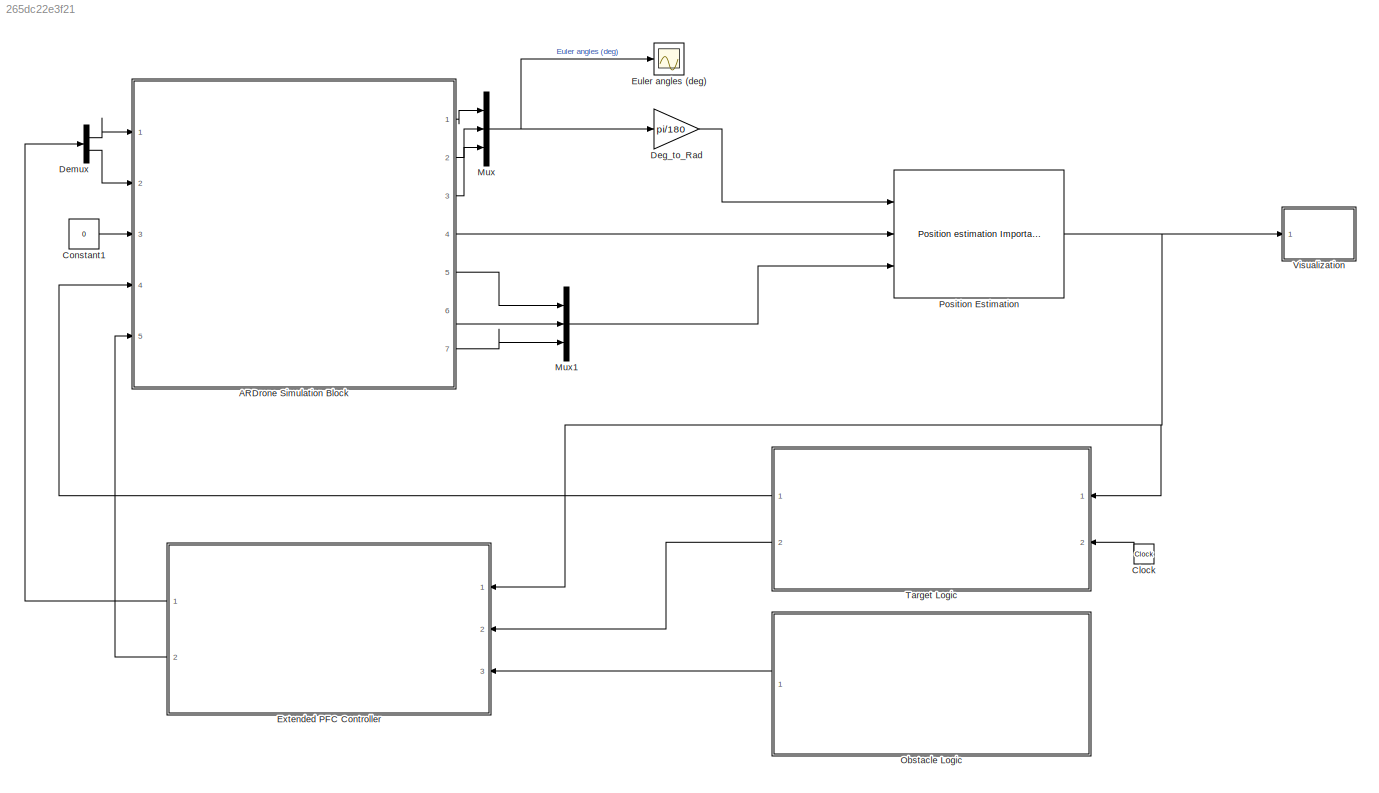
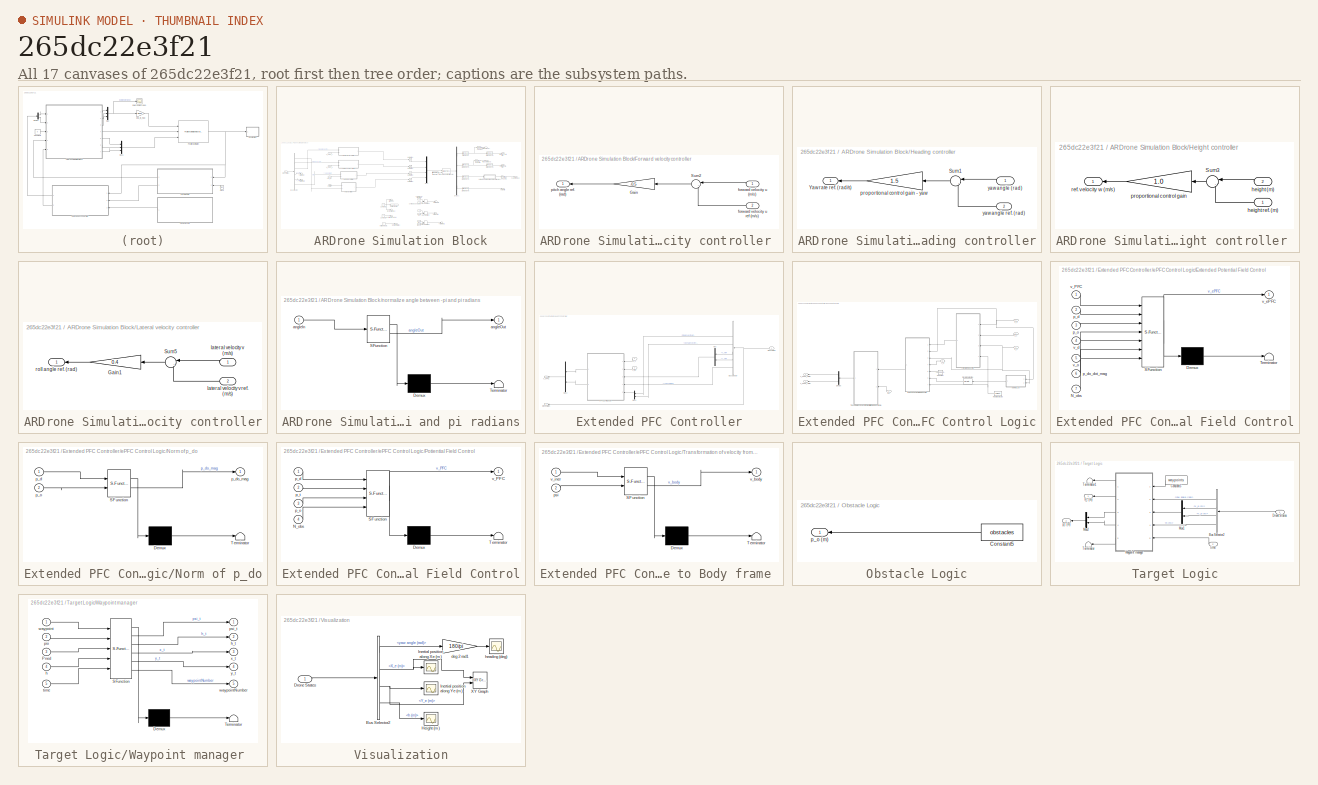
[diagram: thumbnail index - all 17 canvases of the model, root first then tree order]
MODEL slx_265dc22e3f21
KIND model
CONFIG AbsTol = auto
CONFIG EnableMultiTasking = off
CONFIG FixedStep = auto
CONFIG MaxStep = auto
CONFIG MinStep = auto
CONFIG RelTol = 1e-3
CONFIG SampleTimeConstraint = Unconstrained
CONFIG SolverName = VariableStepAuto
CONFIG StartTime = 0.0
CONFIG StopTime = inf
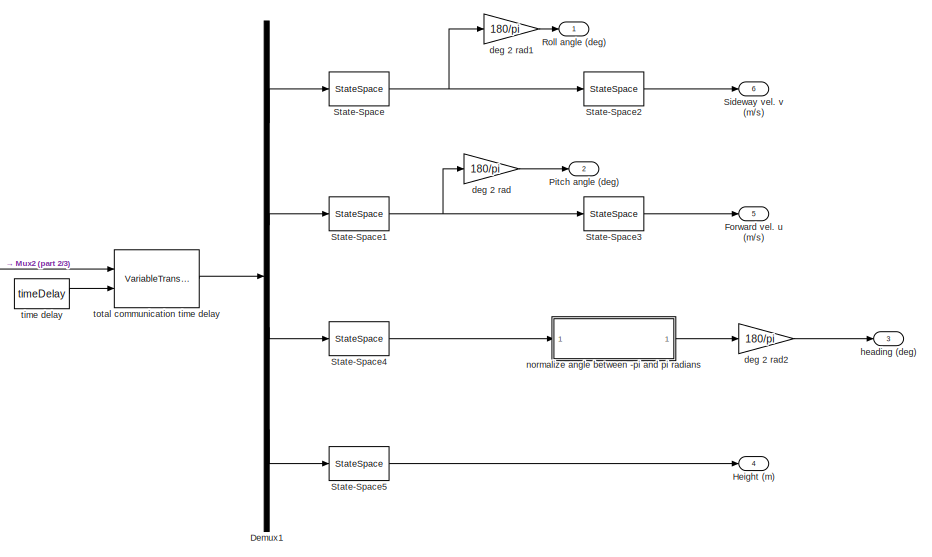
[diagram: ARDrone Simulation Block - part 1/3, middle right region]
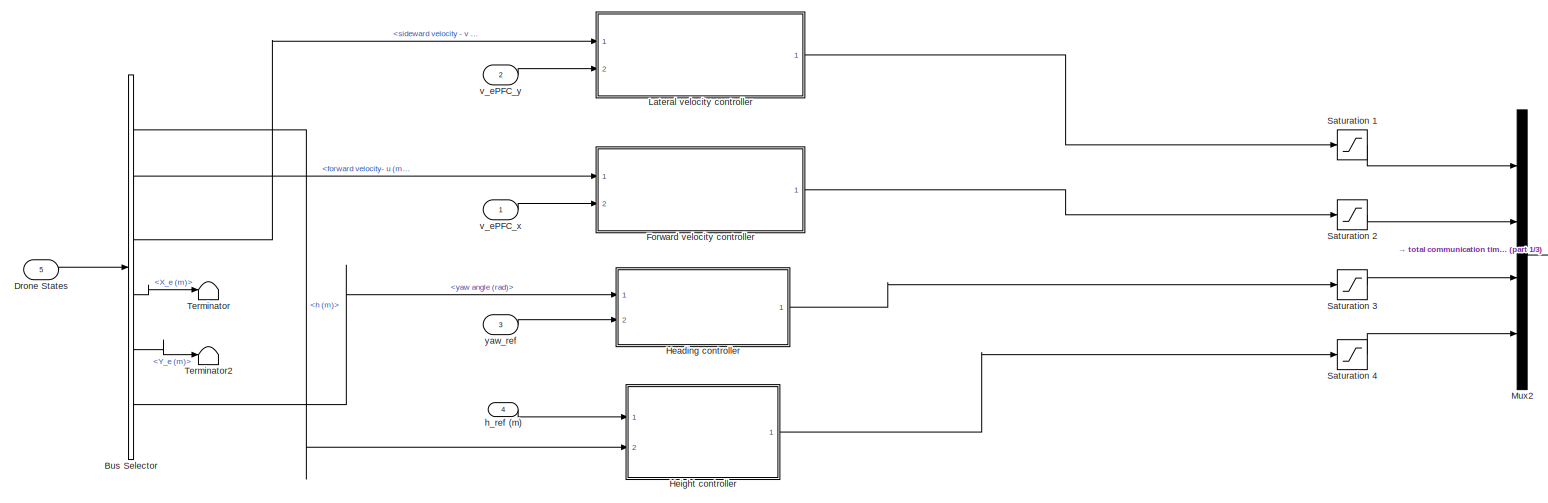
[diagram: ARDrone Simulation Block - part 2/3, top left region]
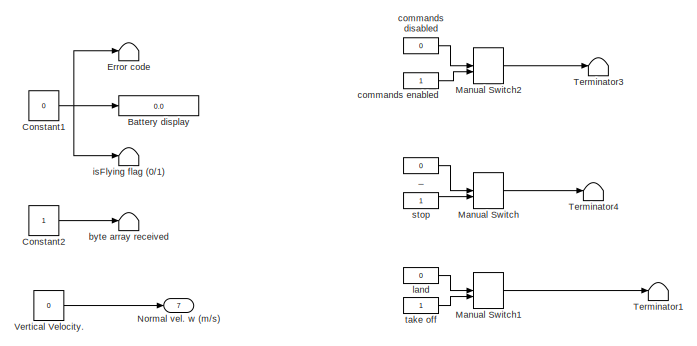
[diagram: ARDrone Simulation Block - part 3/3, bottom center region]
BLOCK [SubSystem] ARDrone Simulation Block
  AncestorBlock = ARBlocks/ARDrone Simulation Block
  Ports = [5, 7]
  RequestExecContextInheritance = off
BLOCK [Display] ARDrone Simulation Block/Battery display
  Decimation = 1
  Ports = [1]
BLOCK [BusSelector] ARDrone Simulation Block/Bus Selector
  NameLocation = top
  OutputSignals = h (m),forward velocity- u (m/s),sideward velocity - v (m/s),X_e (m),Y_e (m),yaw angle (rad)
  Ports = [1, 6]
BLOCK [Constant] ARDrone Simulation Block/Constant1
  Value = 0
BLOCK [Constant] ARDrone Simulation Block/Constant2
BLOCK [Demux] ARDrone Simulation Block/Demux1
  Ports = [1, 4]
BLOCK [Inport] ARDrone Simulation Block/Drone States
  Port = 5
BLOCK [Terminator] ARDrone Simulation Block/Error code
BLOCK [Outport] ARDrone Simulation Block/Forward vel. u (m//s)
  Port = 5
BLOCK [SubSystem] ARDrone Simulation Block/Forward velocity controller 
  NameLocation = top
  Ports = [2, 1]
  RequestExecContextInheritance = off
BLOCK [Gain] ARDrone Simulation Block/Forward velocity controller /Gain
  Gain = -0.5
  NameLocation = top
BLOCK [Sum] ARDrone Simulation Block/Forward velocity controller /Sum2
  Inputs = |-+
  NameLocation = top
  Ports = [2, 1]
BLOCK [Inport] ARDrone Simulation Block/Forward velocity controller /forward velocity u (m//s)
BLOCK [Inport] ARDrone Simulation Block/Forward velocity controller /forward velocity u ref (m//s)
  Port = 2
BLOCK [Outport] ARDrone Simulation Block/Forward velocity controller /pitch angle ref. (rad)
BLOCK [SubSystem] ARDrone Simulation Block/Heading controller
  NameLocation = top
  Ports = [2, 1]
  RequestExecContextInheritance = off
BLOCK [Sum] ARDrone Simulation Block/Heading controller/Sum1
  Inputs = |-+
  NameLocation = top
  Ports = [2, 1]
BLOCK [Outport] ARDrone Simulation Block/Heading controller/Yaw rate ref. (rad//s)
BLOCK [Gain] ARDrone Simulation Block/Heading controller/proportional control gain - yaw
  Gain = 1.5
  NameLocation = top
BLOCK [Inport] ARDrone Simulation Block/Heading controller/yaw angle (rad)
BLOCK [Inport] ARDrone Simulation Block/Heading controller/yaw angle ref. (rad)
  Port = 2
BLOCK [Outport] ARDrone Simulation Block/Height (m)
  Port = 4
BLOCK [SubSystem] ARDrone Simulation Block/Height controller 
  NameLocation = top
  Ports = [2, 1]
  RequestExecContextInheritance = off
BLOCK [Sum] ARDrone Simulation Block/Height controller /Sum3
  Inputs = |-+
  NameLocation = top
  Ports = [2, 1]
BLOCK [Inport] ARDrone Simulation Block/Height controller /height (m)
  Port = 2
BLOCK [Inport] ARDrone Simulation Block/Height controller /height ref. (m)
BLOCK [Gain] ARDrone Simulation Block/Height controller /proportional control gain
  Gain = 1.0
  NameLocation = top
BLOCK [Outport] ARDrone Simulation Block/Height controller /ref. velocity w (m//s)
BLOCK [SubSystem] ARDrone Simulation Block/Lateral velocity controller
  Ports = [2, 1]
  RequestExecContextInheritance = off
BLOCK [Gain] ARDrone Simulation Block/Lateral velocity controller/Gain1
  Gain = 0.4
  NameLocation = top
BLOCK [Sum] ARDrone Simulation Block/Lateral velocity controller/Sum5
  Inputs = |-+
  NameLocation = top
  Ports = [2, 1]
BLOCK [Inport] ARDrone Simulation Block/Lateral velocity controller/lateral velocity v (m//s)
BLOCK [Inport] ARDrone Simulation Block/Lateral velocity controller/lateral velocity v ref. (m//s)
  Port = 2
BLOCK [Outport] ARDrone Simulation Block/Lateral velocity controller/roll angle ref. (rad)
BLOCK [ManualSwitch] ARDrone Simulation Block/Manual Switch
BLOCK [ManualSwitch] ARDrone Simulation Block/Manual Switch1
  CurrentSetting = 0
BLOCK [ManualSwitch] ARDrone Simulation Block/Manual Switch2
  CurrentSetting = 0
  NameLocation = top
BLOCK [Mux] ARDrone Simulation Block/Mux2
  DisplayOption = bar
  Ports = [4, 1]
BLOCK [Outport] ARDrone Simulation Block/Normal vel. w (m//s)
  Port = 7
BLOCK [Outport] ARDrone Simulation Block/Pitch angle (deg)
  Port = 2
BLOCK [Outport] ARDrone Simulation Block/Roll angle (deg)
BLOCK [Saturate] ARDrone Simulation Block/Saturation 1
  LowerLimit = -1
  UpperLimit = 1
BLOCK [Saturate] ARDrone Simulation Block/Saturation 2
  LowerLimit = -1
  UpperLimit = 1
BLOCK [Saturate] ARDrone Simulation Block/Saturation 3
  LowerLimit = -1
  UpperLimit = 1
BLOCK [Saturate] ARDrone Simulation Block/Saturation 4
  LowerLimit = -1
  UpperLimit = 1
BLOCK [Outport] ARDrone Simulation Block/Sideway vel. v (m//s)
  Port = 6
BLOCK [StateSpace] ARDrone Simulation Block/State-Space
  A = ssRoll.a
  B = ssRoll.b
  C = ssRoll.c
  D = ssRoll.d
  InitialCondition = 0
  Ports = [1, 1]
BLOCK [StateSpace] ARDrone Simulation Block/State-Space1
  A = ssPitch.a
  B = ssPitch.b
  C = ssPitch.c
  D = ssPitch.d
  InitialCondition = 0
  Ports = [1, 1]
BLOCK [StateSpace] ARDrone Simulation Block/State-Space2
  A = ssRoll2V.a
  B = ssRoll2V.b
  C = ssRoll2V.c
  D = ssRoll2V.d
  InitialCondition = 0
  Ports = [1, 1]
BLOCK [StateSpace] ARDrone Simulation Block/State-Space3
  A = ssPitch2U.a
  B = ssPitch2U.b
  C = ssPitch2U.c
  D = ssPitch2U.d
  InitialCondition = 0
  Ports = [1, 1]
BLOCK [StateSpace] ARDrone Simulation Block/State-Space4
  A = ssYaw.a
  B = ssYaw.b
  C = ssYaw.c
  D = ssYaw.d
  InitialCondition = 0
  Ports = [1, 1]
BLOCK [StateSpace] ARDrone Simulation Block/State-Space5
  A = ssH.a
  B = ssH.b
  C = ssH.c
  D = ssH.d
  InitialCondition = 0
  Ports = [1, 1]
BLOCK [Terminator] ARDrone Simulation Block/Terminator
BLOCK [Terminator] ARDrone Simulation Block/Terminator1
BLOCK [Terminator] ARDrone Simulation Block/Terminator2
BLOCK [Terminator] ARDrone Simulation Block/Terminator3
BLOCK [Terminator] ARDrone Simulation Block/Terminator4
BLOCK [Constant] ARDrone Simulation Block/Vertical Velocity. 
  Value = 0
BLOCK [Constant] ARDrone Simulation Block/_
  Value = 0
BLOCK [Terminator] ARDrone Simulation Block/byte array received
BLOCK [Constant] ARDrone Simulation Block/commands disabled
  Value = 0
BLOCK [Constant] ARDrone Simulation Block/commands enabled
BLOCK [Gain] ARDrone Simulation Block/deg 2 rad
  Gain = 180/pi
BLOCK [Gain] ARDrone Simulation Block/deg 2 rad1
  Gain = 180/pi
BLOCK [Gain] ARDrone Simulation Block/deg 2 rad2
  Gain = 180/pi
BLOCK [Inport] ARDrone Simulation Block/h_ref (m)
  Port = 4
BLOCK [Outport] ARDrone Simulation Block/heading  (deg)
  Port = 3
BLOCK [Terminator] ARDrone Simulation Block/isFlying flag (0//1)
BLOCK [Constant] ARDrone Simulation Block/land
  Value = 0
BLOCK [SubSystem] ARDrone Simulation Block/normalize angle between -pi and pi radians
  ErrorFcn = Stateflow.Translate.translate
  NameLocation = top
  PermitHierarchicalResolution = ExplicitOnly
  Ports = [1, 1]
  RequestExecContextInheritance = off
  SFBlockType = MATLAB Function
  TreatAsAtomicUnit = on
BLOCK [Demux] ARDrone Simulation Block/normalize angle between -pi and pi radians/ Demux 
  Outputs = 1
  Ports = [1, 1]
BLOCK [S-Function] ARDrone Simulation Block/normalize angle between -pi and pi radians/ SFunction 
  EnableBusSupport = on
  FunctionName = sf_sfun
  PortCounts = [1 2]
  Ports = [1, 2]
  SFcnIsStateOwnerBlock = off
  SFunctionDeploymentMode = off
  Tag = Stateflow S-Function 5
BLOCK [Terminator] ARDrone Simulation Block/normalize angle between -pi and pi radians/ Terminator 
BLOCK [Inport] ARDrone Simulation Block/normalize angle between -pi and pi radians/angleIn
BLOCK [Outport] ARDrone Simulation Block/normalize angle between -pi and pi radians/angleOut
BLOCK [Constant] ARDrone Simulation Block/stop
BLOCK [Constant] ARDrone Simulation Block/take off
BLOCK [Constant] ARDrone Simulation Block/time delay
  Value = timeDelay
BLOCK [VariableTransportDelay] ARDrone Simulation Block/total communication time delay
  InitialOutput = [0 0 0 0]
  MaximumDelay = 10
  MaximumPoints = 4096
  Ports = [2, 1]
BLOCK [Inport] ARDrone Simulation Block/v_ePFC_x
BLOCK [Inport] ARDrone Simulation Block/v_ePFC_y
  Port = 2
BLOCK [Inport] ARDrone Simulation Block/yaw_ref
  Port = 3
BLOCK [Clock] Clock
BLOCK [Constant] Constant1
  Value = 0
BLOCK [Gain] Deg_to_Rad
  Gain = pi/180
BLOCK [Demux] Demux
  Outputs = 2
  Ports = [1, 2]
BLOCK [Scope] Euler angles (deg)
  Floating = off
  NumInputPorts = 1
  Ports = [1]
  ScopeSpecificationString = Simulink.scopes.TimeScopeBlockCfg('CurrentConfiguration', extmgr.ConfigurationSet(extmgr.Configuration('Core','General UI',true),extmgr.Configuration('Core','Source UI',true),extmgr.Configuration('Sources','WiredSimulink',true,'DataLoggingSaveFormat','StructureWithTime','DataLoggingMaxPoints','500000','DataLoggingLimitDataPoints',true,'DataLoggingDecimation','1','DataLoggingDecimateData',true,'Dat...<+1800ch>
BLOCK [SubSystem] Extended PFC Controller
  AncestorBlock = ARBlocks/Baseline Controller
  Ports = [3, 2]
  RequestExecContextInheritance = off
BLOCK [BusSelector] Extended PFC Controller/Bus Selector
  NameLocation = top
  OutputSignals = h (m),forward velocity- u (m/s),sideward velocity - v (m/s),X_e (m),Y_e (m),yaw angle (rad)
  Ports = [1, 6]
BLOCK [Outport] Extended PFC Controller/Drone States
  Port = 2
BLOCK [Inport] Extended PFC Controller/Drone States 
BLOCK [Mux] Extended PFC Controller/Mux
  DisplayOption = bar
  Inputs = 2
  Ports = [2, 1]
BLOCK [Mux] Extended PFC Controller/Mux1
  DisplayOption = bar
  Inputs = 2
  Ports = [2, 1]
BLOCK [Mux] Extended PFC Controller/Mux2
  DisplayOption = bar
  Inputs = 2
  Ports = [2, 1]
BLOCK [SubSystem] Extended PFC Controller/ePFC Control Logic
  NameLocation = top
  Ports = [5, 2]
  RequestExecContextInheritance = off
BLOCK [Constant] Extended PFC Controller/ePFC Control Logic/Constant
  Value = zeros(2,nObst)
BLOCK [Demux] Extended PFC Controller/ePFC Control Logic/Demux
  NameLocation = top
  Outputs = 2
  Ports = [1, 2]
BLOCK [Reference] Extended PFC Controller/ePFC Control Logic/Discrete Derivative  REF=simulink/Discrete/Discrete Derivative
  Ports = [1, 1]
  SourceBlock = simulink/Discrete/Discrete Derivative
  SourceProductBaseCode = SL
  SourceType = Discrete Derivative
BLOCK [SubSystem] Extended PFC Controller/ePFC Control Logic/Extended Potential Field Control
  ErrorFcn = Stateflow.Translate.translate
  NameLocation = top
  PermitHierarchicalResolution = ExplicitOnly
  Ports = [7, 1]
  RequestExecContextInheritance = off
  SFBlockType = MATLAB Function
  TreatAsAtomicUnit = on
BLOCK [Demux] Extended PFC Controller/ePFC Control Logic/Extended Potential Field Control/ Demux 
  Outputs = 1
  Ports = [1, 1]
BLOCK [S-Function] Extended PFC Controller/ePFC Control Logic/Extended Potential Field Control/ SFunction 
  EnableBusSupport = on
  FunctionName = sf_sfun
  PortCounts = [7 2]
  Ports = [7, 2]
  SFcnIsStateOwnerBlock = off
  SFunctionDeploymentMode = off
  Tag = Stateflow S-Function 3
BLOCK [Terminator] Extended PFC Controller/ePFC Control Logic/Extended Potential Field Control/ Terminator 
BLOCK [Inport] Extended PFC Controller/ePFC Control Logic/Extended Potential Field Control/N_obs
  Port = 7
BLOCK [Inport] Extended PFC Controller/ePFC Control Logic/Extended Potential Field Control/p_d
  Port = 2
BLOCK [Inport] Extended PFC Controller/ePFC Control Logic/Extended Potential Field Control/p_do_dot_mag
  Port = 6
BLOCK [Inport] Extended PFC Controller/ePFC Control Logic/Extended Potential Field Control/p_o
  Port = 3
BLOCK [Inport] Extended PFC Controller/ePFC Control Logic/Extended Potential Field Control/v_PFC
BLOCK [Inport] Extended PFC Controller/ePFC Control Logic/Extended Potential Field Control/v_d
  Port = 4
BLOCK [Outport] Extended PFC Controller/ePFC Control Logic/Extended Potential Field Control/v_ePFC
BLOCK [Inport] Extended PFC Controller/ePFC Control Logic/Extended Potential Field Control/v_o
  Port = 5
BLOCK [Constant] Extended PFC Controller/ePFC Control Logic/No. of Obstacles
  LockScale = on
  Value = nObst
BLOCK [SubSystem] Extended PFC Controller/ePFC Control Logic/Norm of p_do
  ErrorFcn = Stateflow.Translate.translate
  PermitHierarchicalResolution = ExplicitOnly
  Ports = [2, 1]
  RequestExecContextInheritance = off
  SFBlockType = MATLAB Function
  TreatAsAtomicUnit = on
BLOCK [Demux] Extended PFC Controller/ePFC Control Logic/Norm of p_do/ Demux 
  Outputs = 1
  Ports = [1, 1]
BLOCK [S-Function] Extended PFC Controller/ePFC Control Logic/Norm of p_do/ SFunction 
  EnableBusSupport = on
  FunctionName = sf_sfun
  Parameters = nObst
  PortCounts = [2 2]
  Ports = [2, 2]
  SFcnIsStateOwnerBlock = off
  SFunctionDeploymentMode = off
  Tag = Stateflow S-Function 4
BLOCK [Terminator] Extended PFC Controller/ePFC Control Logic/Norm of p_do/ Terminator 
BLOCK [Inport] Extended PFC Controller/ePFC Control Logic/Norm of p_do/p_d
BLOCK [Outport] Extended PFC Controller/ePFC Control Logic/Norm of p_do/p_do_mag
BLOCK [Inport] Extended PFC Controller/ePFC Control Logic/Norm of p_do/p_o
  Port = 2
BLOCK [SubSystem] Extended PFC Controller/ePFC Control Logic/Potiential Field Control
  ErrorFcn = Stateflow.Translate.translate
  NameLocation = top
  PermitHierarchicalResolution = ExplicitOnly
  Ports = [4, 1]
  RequestExecContextInheritance = off
  SFBlockType = MATLAB Function
  TreatAsAtomicUnit = on
BLOCK [Demux] Extended PFC Controller/ePFC Control Logic/Potiential Field Control/ Demux 
  Outputs = 1
  Ports = [1, 1]
BLOCK [S-Function] Extended PFC Controller/ePFC Control Logic/Potiential Field Control/ SFunction 
  EnableBusSupport = on
  FunctionName = sf_sfun
  PortCounts = [4 2]
  Ports = [4, 2]
  SFcnIsStateOwnerBlock = off
  SFunctionDeploymentMode = off
  Tag = Stateflow S-Function 1
BLOCK [Terminator] Extended PFC Controller/ePFC Control Logic/Potiential Field Control/ Terminator 
BLOCK [Inport] Extended PFC Controller/ePFC Control Logic/Potiential Field Control/N_obs
  Port = 4
BLOCK [Inport] Extended PFC Controller/ePFC Control Logic/Potiential Field Control/p_d
BLOCK [Inport] Extended PFC Controller/ePFC Control Logic/Potiential Field Control/p_o
  Port = 3
BLOCK [Inport] Extended PFC Controller/ePFC Control Logic/Potiential Field Control/p_t
  Port = 2
BLOCK [Outport] Extended PFC Controller/ePFC Control Logic/Potiential Field Control/v_PFC
BLOCK [SubSystem] Extended PFC Controller/ePFC Control Logic/Transformation of velocity from Inertial frame to Body frame 
  ErrorFcn = Stateflow.Translate.translate
  NameLocation = top
  PermitHierarchicalResolution = ExplicitOnly
  Ports = [2, 1]
  RequestExecContextInheritance = off
  SFBlockType = MATLAB Function
  TreatAsAtomicUnit = on
BLOCK [Demux] Extended PFC Controller/ePFC Control Logic/Transformation of velocity from Inertial frame to Body frame / Demux 
  Outputs = 1
  Ports = [1, 1]
BLOCK [S-Function] Extended PFC Controller/ePFC Control Logic/Transformation of velocity from Inertial frame to Body frame / SFunction 
  EnableBusSupport = on
  FunctionName = sf_sfun
  PortCounts = [2 2]
  Ports = [2, 2]
  SFcnIsStateOwnerBlock = off
  SFunctionDeploymentMode = off
  Tag = Stateflow S-Function 7
BLOCK [Terminator] Extended PFC Controller/ePFC Control Logic/Transformation of velocity from Inertial frame to Body frame / Terminator 
BLOCK [Inport] Extended PFC Controller/ePFC Control Logic/Transformation of velocity from Inertial frame to Body frame /psi
  Port = 2
BLOCK [Outport] Extended PFC Controller/ePFC Control Logic/Transformation of velocity from Inertial frame to Body frame /v_body
BLOCK [Inport] Extended PFC Controller/ePFC Control Logic/Transformation of velocity from Inertial frame to Body frame /v_iner
BLOCK [Outport] Extended PFC Controller/ePFC Control Logic/V_ePFC_x (m//s)
BLOCK [Outport] Extended PFC Controller/ePFC Control Logic/V_ePFC_y (m//s)
  Port = 2
BLOCK [Inport] Extended PFC Controller/ePFC Control Logic/p_d
  Port = 3
BLOCK [Inport] Extended PFC Controller/ePFC Control Logic/p_o
BLOCK [Inport] Extended PFC Controller/ePFC Control Logic/p_t
  Port = 2
BLOCK [Inport] Extended PFC Controller/ePFC Control Logic/psi
  Port = 4
BLOCK [Inport] Extended PFC Controller/ePFC Control Logic/v_d
  Port = 5
BLOCK [Inport] Extended PFC Controller/p_o
  Port = 3
BLOCK [Inport] Extended PFC Controller/p_t (m)
  Port = 2
BLOCK [Outport] Extended PFC Controller/v_ePFC
BLOCK [Mux] Mux
  DisplayOption = bar
  Inputs = 3
  Ports = [3, 1]
BLOCK [Mux] Mux1
  DisplayOption = bar
  Inputs = 3
  Ports = [3, 1]
BLOCK [SubSystem] Obstacle Logic
  AncestorBlock = ARBlocks/Guidance logic
  Ports = [0, 1]
  RequestExecContextInheritance = off
BLOCK [Constant] Obstacle Logic/Constant5
  NameLocation = top
  Value = obstacles
  VectorParams1D = off
BLOCK [Outport] Obstacle Logic/p_o (m)
BLOCK [Reference] Position Estimation   REF=ARBlocks/Position estimation
Important:This block provides an 
inaccurate extimation of position 
based on  velocity information. 
  Ports = [3, 1]
  SourceBlock = ARBlocks/Position estimation\nImportant:This block provides an \ninaccurate extimation of position \nbased on  velocity information.
  SourceType = SubSystem
BLOCK [SubSystem] Target Logic
  AncestorBlock = ARBlocks/Guidance logic
  Ports = [2, 2]
  RequestExecContextInheritance = off
BLOCK [BusSelector] Target Logic/Bus Selector2
  OutputSignals = yaw angle (rad),X_e (m),Y_e (m),h (m)
  Ports = [1, 4]
BLOCK [Constant] Target Logic/Constant5
  NameLocation = top
  Value = waypoints
  VectorParams1D = off
BLOCK [Inport] Target Logic/Drone States
BLOCK [Mux] Target Logic/Mux1
  DisplayOption = bar
  Inputs = 2
  NameLocation = top
  Ports = [2, 1]
BLOCK [Mux] Target Logic/Mux2
  DisplayOption = bar
  Inputs = 2
  NameLocation = top
  Ports = [2, 1]
BLOCK [Terminator] Target Logic/Terminator
  NameLocation = top
BLOCK [Terminator] Target Logic/Terminator1
  NameLocation = top
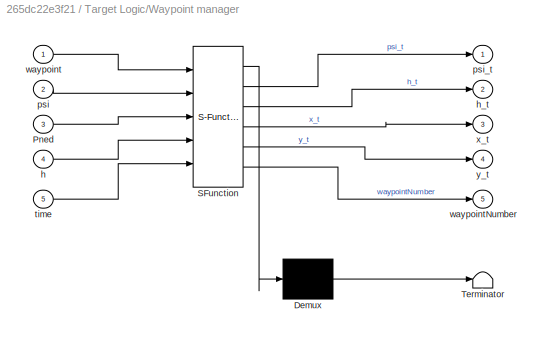
BLOCK [SubSystem] Target Logic/Waypoint manager 
  ErrorFcn = Stateflow.Translate.translate
  NameLocation = top
  PermitHierarchicalResolution = ExplicitOnly
  Ports = [5, 5]
  RequestExecContextInheritance = off
  SFBlockType = MATLAB Function
  TreatAsAtomicUnit = on
BLOCK [Demux] Target Logic/Waypoint manager / Demux 
  Outputs = 1
  Ports = [1, 1]
BLOCK [S-Function] Target Logic/Waypoint manager / SFunction 
  EnableBusSupport = on
  FunctionName = sf_sfun
  PortCounts = [5 6]
  Ports = [5, 6]
  SFcnIsStateOwnerBlock = off
  SFunctionDeploymentMode = off
  Tag = Stateflow S-Function 9
BLOCK [Terminator] Target Logic/Waypoint manager / Terminator 
BLOCK [Inport] Target Logic/Waypoint manager /Pned
  Port = 3
BLOCK [Inport] Target Logic/Waypoint manager /h
  Port = 4
BLOCK [Outport] Target Logic/Waypoint manager /h_t
  Port = 2
BLOCK [Inport] Target Logic/Waypoint manager /psi
  Port = 2
BLOCK [Outport] Target Logic/Waypoint manager /psi_t
BLOCK [Inport] Target Logic/Waypoint manager /time
  Port = 5
BLOCK [Inport] Target Logic/Waypoint manager /waypoint
BLOCK [Outport] Target Logic/Waypoint manager /waypointNumber
  Port = 5
BLOCK [Outport] Target Logic/Waypoint manager /x_t
  Port = 3
BLOCK [Outport] Target Logic/Waypoint manager /y_t
  Port = 4
BLOCK [Outport] Target Logic/h_t (m)
BLOCK [Outport] Target Logic/p_t (m)
  Port = 2
BLOCK [Inport] Target Logic/time
  Port = 2
BLOCK [SubSystem] Visualization
  Ports = [1]
  RequestExecContextInheritance = off
BLOCK [BusSelector] Visualization/Bus Selector2
  NameLocation = top
  OutputSignals = yaw angle (rad),X_e (m),Y_e (m),h (m)
  Ports = [1, 4]
BLOCK [Inport] Visualization/Drone States
BLOCK [Scope] Visualization/Height (m)
  Floating = off
  NumInputPorts = 1
  Ports = [1]
  ScopeSpecificationString = Simulink.scopes.TimeScopeBlockCfg('CurrentConfiguration', extmgr.ConfigurationSet(extmgr.Configuration('Core','General UI',true),extmgr.Configuration('Core','Source UI',true),extmgr.Configuration('Sources','WiredSimulink',true,'DataLoggingVariableName','ScopeData5','DataLoggingSaveFormat','StructureWithTime','DataLoggingMaxPoints','500000','DataLoggingLimitDataPoints',true,'DataLoggingDecimation',...<+1736ch>
BLOCK [Scope] Visualization/Inertial position along Xe (m)
  Floating = off
  NumInputPorts = 1
  Ports = [1]
  ScopeSpecificationString = Simulink.scopes.TimeScopeBlockCfg('CurrentConfiguration', extmgr.ConfigurationSet(extmgr.Configuration('Core','General UI',true),extmgr.Configuration('Core','Source UI',true),extmgr.Configuration('Sources','WiredSimulink',true,'DataLoggingVariableName','ScopeData3','DataLoggingSaveFormat','StructureWithTime','DataLoggingMaxPoints','500000','DataLoggingLimitDataPoints',true,'DataLoggingDecimation',...<+1770ch>
BLOCK [Scope] Visualization/Inertial position along Ye (m)
  Floating = off
  NumInputPorts = 1
  Ports = [1]
  ScopeSpecificationString = Simulink.scopes.TimeScopeBlockCfg('CurrentConfiguration', extmgr.ConfigurationSet(extmgr.Configuration('Core','General UI',true),extmgr.Configuration('Core','Source UI',true),extmgr.Configuration('Sources','WiredSimulink',true,'DataLoggingVariableName','ScopeData4','DataLoggingSaveFormat','StructureWithTime','DataLoggingMaxPoints','500000','DataLoggingLimitDataPoints',true,'DataLoggingDecimation',...<+1770ch>
BLOCK [Reference] Visualization/XY Graph  REF=simulink/Sinks/XY Graph
  Ports = [2]
  SourceBlock = simulink/Sinks/XY Graph
  SourceProductBaseCode = SL
  SourceType = XY scope.
BLOCK [Gain] Visualization/deg 2 rad1
  Gain = 180/pi
BLOCK [Scope] Visualization/heading (deg)
  Floating = off
  NumInputPorts = 1
  Ports = [1]
  ScopeSpecificationString = Simulink.scopes.TimeScopeBlockCfg('CurrentConfiguration', extmgr.ConfigurationSet(extmgr.Configuration('Core','General UI',true),extmgr.Configuration('Core','Source UI',true),extmgr.Configuration('Sources','WiredSimulink',true,'DataLoggingVariableName','ScopeData2','DataLoggingSaveFormat','StructureWithTime','DataLoggingMaxPoints','500000','DataLoggingLimitDataPoints',true,'DataLoggingDecimation',...<+1736ch>
LINE ARDrone Simulation Block:1 -> Mux:1
LINE ARDrone Simulation Block:2 -> Mux:2
LINE ARDrone Simulation Block:3 -> Mux:3
LINE ARDrone Simulation Block:4 -> Position Estimation :2
LINE ARDrone Simulation Block:5 -> Mux1:1
LINE ARDrone Simulation Block:6 -> Mux1:2
LINE ARDrone Simulation Block:7 -> Mux1:3
LINE Clock:1 -> Target Logic:2
LINE Constant1:1 -> ARDrone Simulation Block:3
LINE Deg_to_Rad:1 -> Position Estimation :1
LINE Demux:1 -> ARDrone Simulation Block:1
LINE Demux:2 -> ARDrone Simulation Block:2
LINE Extended PFC Controller:1 -> Demux:1
LINE Extended PFC Controller:2 -> ARDrone Simulation Block:5
LINE Mux1:1 -> Position Estimation :3
NET Mux:1 -> Deg_to_Rad:1, Euler angles (deg):1
LINE Obstacle Logic:1 -> Extended PFC Controller:3
NET Position Estimation :1 -> Extended PFC Controller:1, Target Logic:1, Visualization:1
LINE Target Logic:1 -> ARDrone Simulation Block:4
LINE Target Logic:2 -> Extended PFC Controller:2
LINE Visualization/Bus Selector2:1 -> Visualization/deg 2 rad1:1
NET Visualization/Bus Selector2:2 -> Visualization/Inertial position along Xe (m):1, Visualization/XY Graph:1
NET Visualization/Bus Selector2:3 -> Visualization/Inertial position along Ye (m):1, Visualization/XY Graph:2
LINE Visualization/Bus Selector2:4 -> Visualization/Height (m):1
LINE Visualization/Drone States:1 -> Visualization/Bus Selector2:1
LINE Visualization/deg 2 rad1:1 -> Visualization/heading (deg):1
note: NET lines group one-source signal fan-out (src -> all destinations, sorted); 1:1 wires keep LINE
CHART Extended PFC Controller/ePFC Control Logic/Potiential Field Control states=1 transitions=1
  STATE_LABEL 'eML_blk_kernel()'
  STATE_LABEL 'SCRIPT:\nfunction v_PFC  = fcn(p_d , p_t, p_o, N_obs)\n    %% Calculating PFC velocity\n    % Inputs: drone position (X,Y), target positions (X,Y), \n    %         obstacle positions (X,Y), Number of Obstacles\n    % Output: Computed PFC velocity in Inertial frame(m/s)\n    \n    p_avoid = 0.8; % Obstacle avoidance range (m)\n       \n    % Positive Scalar constants\n    lamda_1 = 0.4; % Tuned values: 0.3 &...<+495ch>'
CHART Extended PFC Controller/ePFC Control Logic/Extended Potential Field Control states=1 transitions=1
  STATE_LABEL 'eML_blk_kernel()'
  STATE_LABEL 'SCRIPT:\nfunction v_ePFC  = fcn(v_PFC, p_d , p_o, v_d, v_o, p_do_dot_mag, N_obs)    \n    %% Calculating ePFC velocity\n    % Inputs: PFC velocity (m/s), drone position (X,Y),  \n    %         obstacle positions (X,Y), drone velocities (X,Y)\n    %         obstacle velocities (X,Y), |p_do|_dot, No. of Obstacles\n    % Output: Computed extended PFC velocity in Inertial frame (m/s)\n    \n    % Positive sca...<+868ch>'
CHART Extended PFC Controller/ePFC Control Logic/Norm of p_do states=1 transitions=1
  STATE_LABEL 'eML_blk_kernel()'
  STATE_LABEL 'SCRIPT:\nfunction p_do_mag = fcn(p_d, p_o, nObst)\n    \n    p = zeros(1, nObst);\n    \n    if (nObst ~= 0)\n        for i = 1:nObst\n           p(i) = norm(p_d - p_o(:,i));\n        end\n    end\n    \n    p_do_mag = p;\n    \nend\n'
CHART ARDrone Simulation Block/normalize angle 
between -pi and pi radians states=1 transitions=1
  STATE_LABEL 'eML_blk_kernel()'
  STATE_LABEL 'SCRIPT:\nfunction angleOut = fcn(angleIn)\n%#codegen\n\nangleOut = mod(angleIn, 2*pi) ;\nif angleOut > pi\n    angleOut = -2*pi + angleOut ; \nend\n'
CHART Extended PFC Controller/ePFC Control Logic/Transformation of velocity 
from Inertial frame to Body frame  states=1 transitions=1
  STATE_LABEL 'eML_blk_kernel()'
  STATE_LABEL 'SCRIPT:\nfunction v_body  = fcn(v_iner , psi)\n    \n    R = [cos(psi) sin(psi) ; -sin(psi) cos(psi)] ; \n\n    v_body = R * v_iner(1:2,1); \n\nend\n\n\n'
CHART Target Logic/Waypoint manager
 states=1 transitions=1
  STATE_LABEL 'eML_blk_kernel()'
  STATE_LABEL 'SCRIPT:\nfunction [psi_t, h_t,  x_t, y_t, waypointNumber]       = fcn(waypoint, psi, Pned, h, time )\n\n    % Waypoint matrix contains final position, orientation, and waiting time.\n\n    % Number of waypoints\n    nPoints = size(waypoint, 2) ;\n\n    % Persitent variable used to keep trak of next waypoint\n    persistent wpointer;\n\n    % Time zero for each waypoint. This is used to wait at a desired posi...<+1095ch>'
CHART  states=0 transitions=0
CHART  states=0 transitions=0
CHART  states=0 transitions=0
CHART  states=0 transitions=0
CHART  states=0 transitions=0
CHART  states=0 transitions=0
